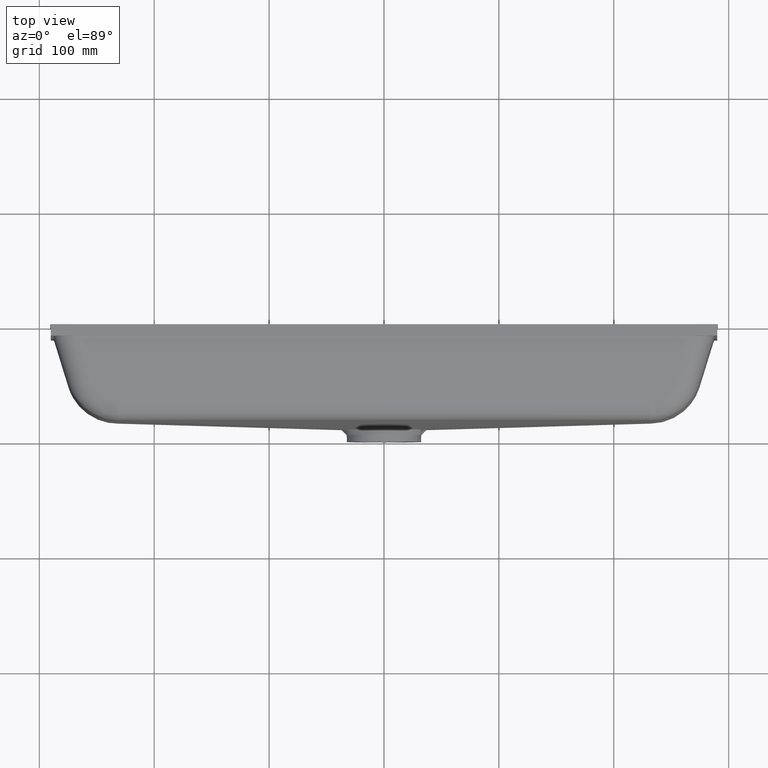
[diagram: clean part render]
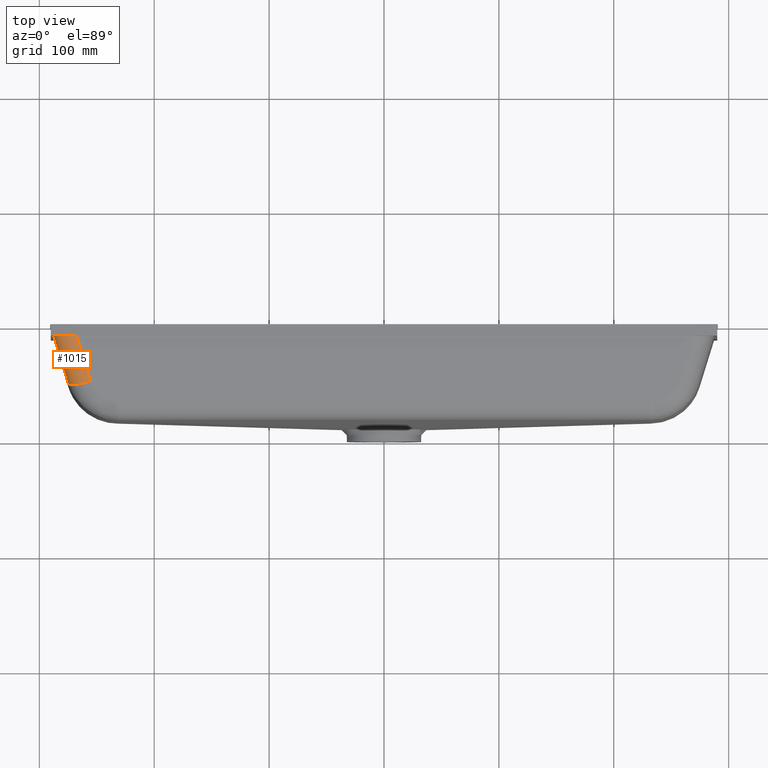
[diagram: same view with one face highlighted and labeled with its STEP entity id]
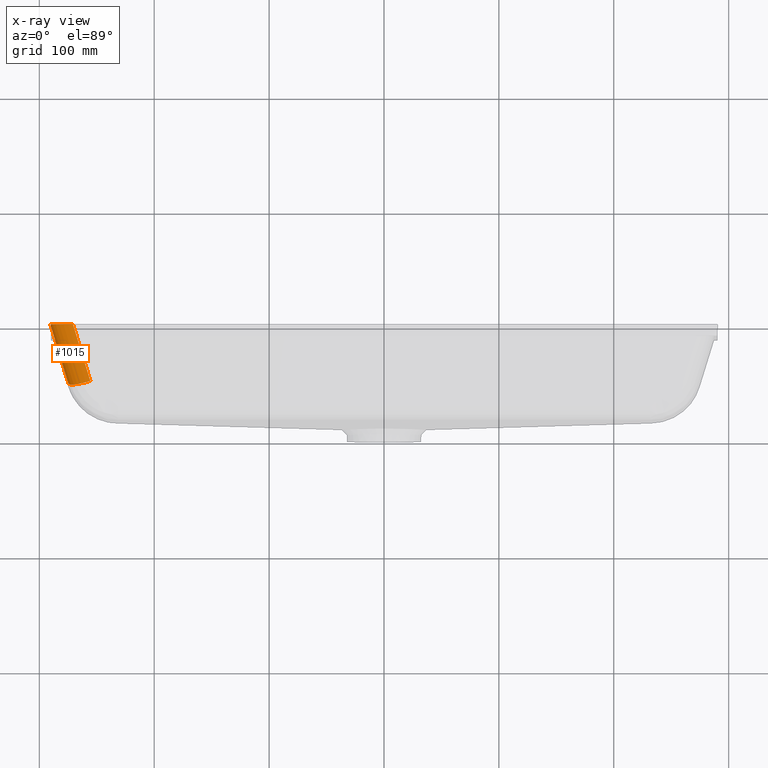
[diagram: x-ray of the same camera — body ghosted, the highlighted face saturated]
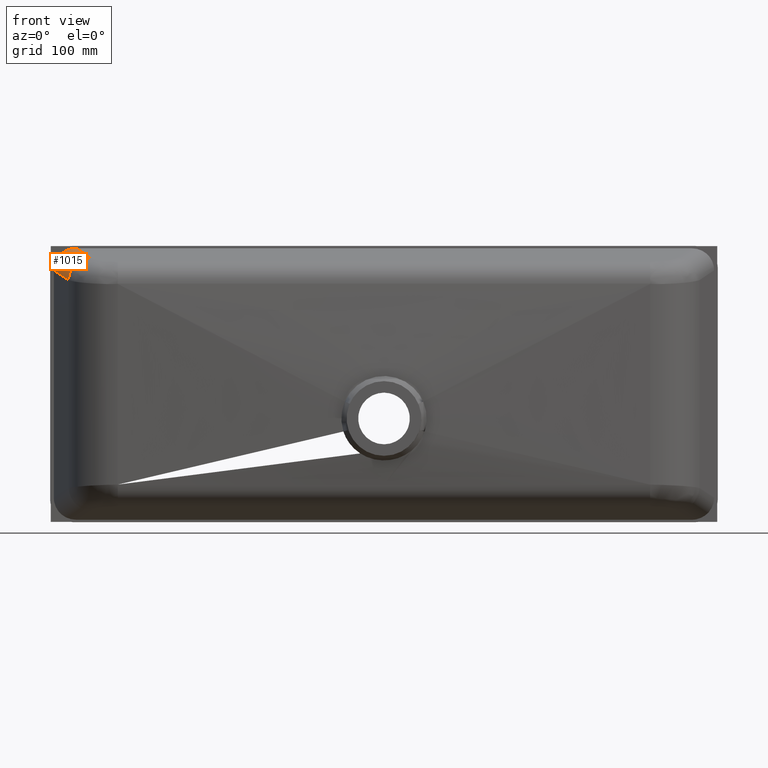
[diagram: same view with one face highlighted and labeled with its STEP entity id]
A machine part, top view. The second image highlights one B-rep face of the part: STEP entity #1015.
The next image is the same camera in x-ray: the body ghosted, the highlighted face saturated — about 0% of this face is hidden behind the body in this view.
A second angle (front view) of the same face is appended — the face is thin or edge-on in the first view.
In plain terms, the highlighted cylindrical surface (edge-blend (fillet) strip) has radius 20 mm, axis along (0.289, -0.9377, -0.1927).
Its self-contained STEP definition (entity closure, byte-faithful):
#6 = ORIENTED_EDGE ( 'NONE', *, *, #6114, .F. ) ;
#41 = CIRCLE ( 'NONE', #3598, 19.99999999999999300 ) ;
#85 = VERTEX_POINT ( 'NONE', #4630 ) ;
#93 = DIRECTION ( 'NONE',  ( 0.9556373745590792700, 0.2945457661312247400, -2.081668171172169300E-015 ) ) ;
#110 = AXIS2_PLACEMENT_3D ( 'NONE', #2316, #2524, #5527 ) ;
#374 = EDGE_CURVE ( 'NONE', #2437, #6272, #41, .T. ) ;
#1015 = ADVANCED_FACE ( 'NONE', ( #3080 ), #3422, .T. ) ;
#1179 = CARTESIAN_POINT ( 'NONE',  ( -270.7765116910904900, 0.0000000000000000000, 120.2089265117187200 ) ) ;
#1206 = CARTESIAN_POINT ( 'NONE',  ( -255.5538345992264900, -45.36364415328061700, 90.46977674445646800 ) ) ;
#1673 = CARTESIAN_POINT ( 'NONE',  ( -243.3109626200313200, -152.9861248686825700, 69.56603043087211800 ) ) ;
#2282 = ORIENTED_EDGE ( 'NONE', *, *, #374, .T. ) ;
#2316 = CARTESIAN_POINT ( 'NONE',  ( -224.1982151288497400, -147.0952095460581000, 69.56603043087211800 ) ) ;
#2420 =( BOUNDED_CURVE ( )  B_SPLINE_CURVE ( 3, ( #6711, #3282, #6423, #5892 ),
 .UNSPECIFIED., .F., .T. ) 
 B_SPLINE_CURVE_WITH_KNOTS ( ( 4, 4 ),
 ( 2.582883311619177400, 4.094360363580619800 ),
 .UNSPECIFIED. ) 
 CURVE ( )  GEOMETRIC_REPRESENTATION_ITEM ( )  RATIONAL_B_SPLINE_CURVE ( ( 1.000000000000000000, 0.8185101607569638100, 0.8185101607569638100, 1.000000000000000000 ) ) 
 REPRESENTATION_ITEM ( '' )  );
#2437 = VERTEX_POINT ( 'NONE', #6495 ) ;
#2524 = DIRECTION ( 'NONE',  ( 0.2890262232899781800, -0.9377295244519260300, -0.1926841488599843100 ) ) ;
#2612 = VERTEX_POINT ( 'NONE', #1179 ) ;
#2634 = DIRECTION ( 'NONE',  ( 0.2890262232899781200, -0.9377295244519258100, -0.1926841488599842500 ) ) ;
#2759 = CARTESIAN_POINT ( 'NONE',  ( -224.1982151288494500, -151.1206955130483000, 89.15672880355819500 ) ) ;
#3056 = CARTESIAN_POINT ( 'NONE',  ( -255.5538345992263800, -49.38913012027088500, 110.0604751171425300 ) ) ;
#3080 = FACE_OUTER_BOUND ( 'NONE', #3489, .T. ) ;
#3282 = CARTESIAN_POINT ( 'NONE',  ( -290.4642202850363900, 0.0000000000000000000, 112.3868322190508900 ) ) ;
#3422 = CYLINDRICAL_SURFACE ( 'NONE', #110, 19.99999999999999300 ) ;
#3489 = EDGE_LOOP ( 'NONE', ( #3990, #2282, #3531, #6 ) ) ;
#3531 = ORIENTED_EDGE ( 'NONE', *, *, #5139, .F. ) ;
#3598 = AXIS2_PLACEMENT_3D ( 'NONE', #1206, #3673, #93 ) ;
#3673 = DIRECTION ( 'NONE',  ( -0.2890262232899781800, 0.9377295244519260300, 0.1926841488599843100 ) ) ;
#3952 = LINE ( 'NONE', #1673, #6427 ) ;
#3990 = ORIENTED_EDGE ( 'NONE', *, *, #4063, .F. ) ;
#4063 = EDGE_CURVE ( 'NONE', #2437, #85, #3952, .T. ) ;
#4563 = LINE ( 'NONE', #2759, #5084 ) ;
#4630 = CARTESIAN_POINT ( 'NONE',  ( -290.4642202850363900, 0.0000000000000000000, 101.0015355408753000 ) ) ;
#5084 = VECTOR ( 'NONE', #2634, 1000.000000000000200 ) ;
#5139 = EDGE_CURVE ( 'NONE', #2612, #6272, #4563, .T. ) ;
#5527 = DIRECTION ( 'NONE',  ( 0.9556373745590792700, 0.2945457661312240700, 0.0000000000000000000 ) ) ;
#5892 = CARTESIAN_POINT ( 'NONE',  ( -270.7765116910904900, 0.0000000000000000000, 120.2089265117187200 ) ) ;
#6114 = EDGE_CURVE ( 'NONE', #85, #2612, #2420, .T. ) ;
#6272 = VERTEX_POINT ( 'NONE', #3056 ) ;
#6423 = CARTESIAN_POINT ( 'NONE',  ( -282.4465195331652600, 0.0000000000000000000, 120.2089265117188900 ) ) ;
#6427 = VECTOR ( 'NONE', #7109, 1000.000000000000200 ) ;
#6495 = CARTESIAN_POINT ( 'NONE',  ( -274.6665820904080400, -51.25455947590506200, 90.46977674445646800 ) ) ;
#6711 = CARTESIAN_POINT ( 'NONE',  ( -290.4642202850363900, 0.0000000000000000000, 101.0015355408753000 ) ) ;
#7109 = DIRECTION ( 'NONE',  ( -0.2890262232899781200, 0.9377295244519258100, 0.1926841488599842500 ) ) ;